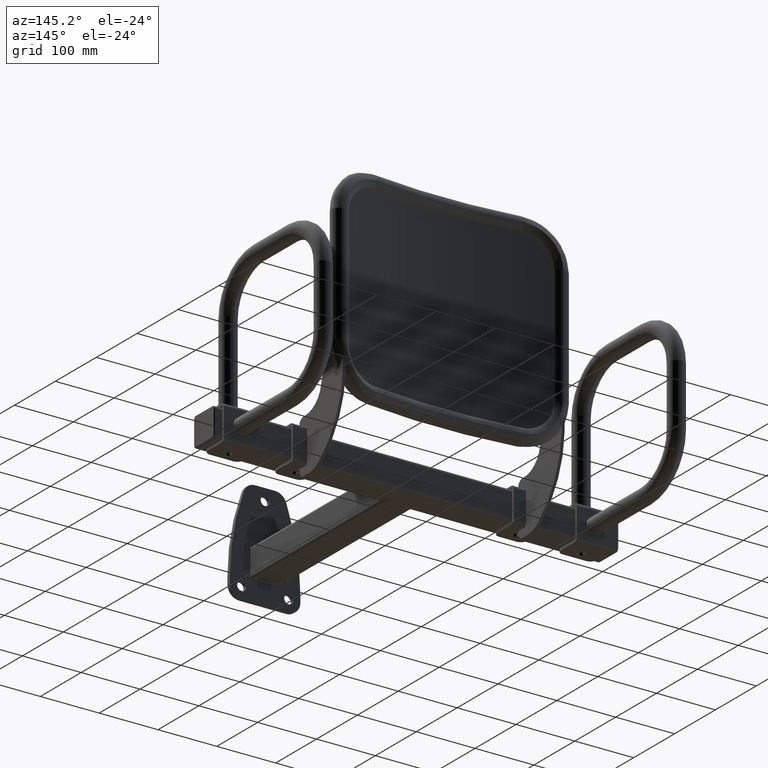
[diagram: clean part render]
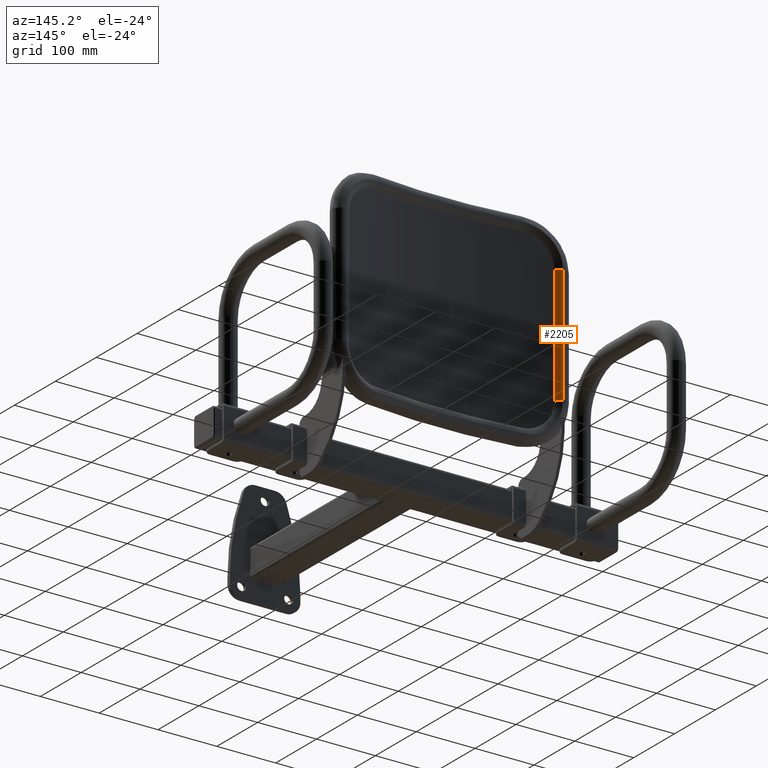
[diagram: same view with one face highlighted and labeled with its STEP entity id]
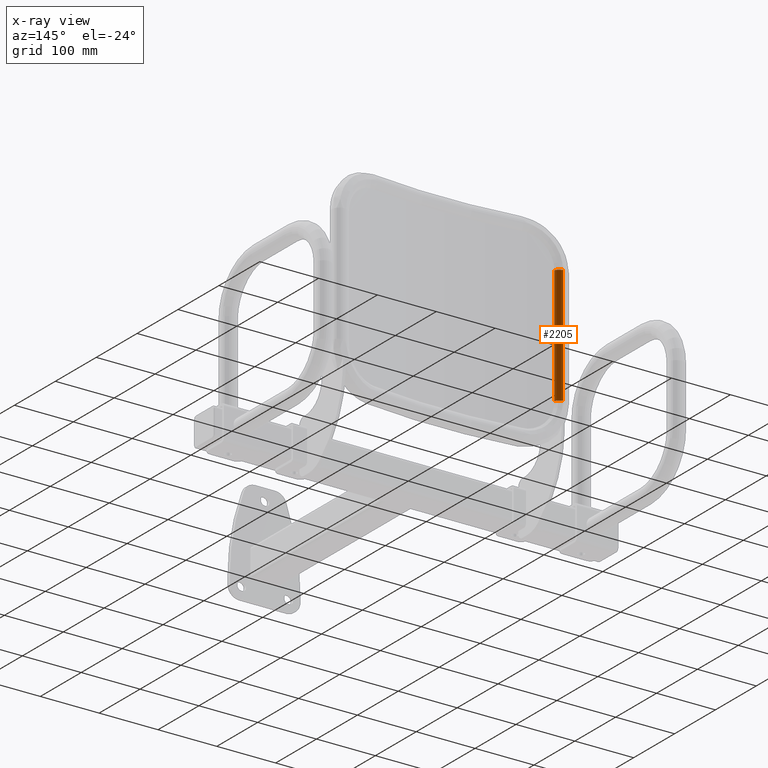
[diagram: x-ray of the same camera — body ghosted, the highlighted face saturated]
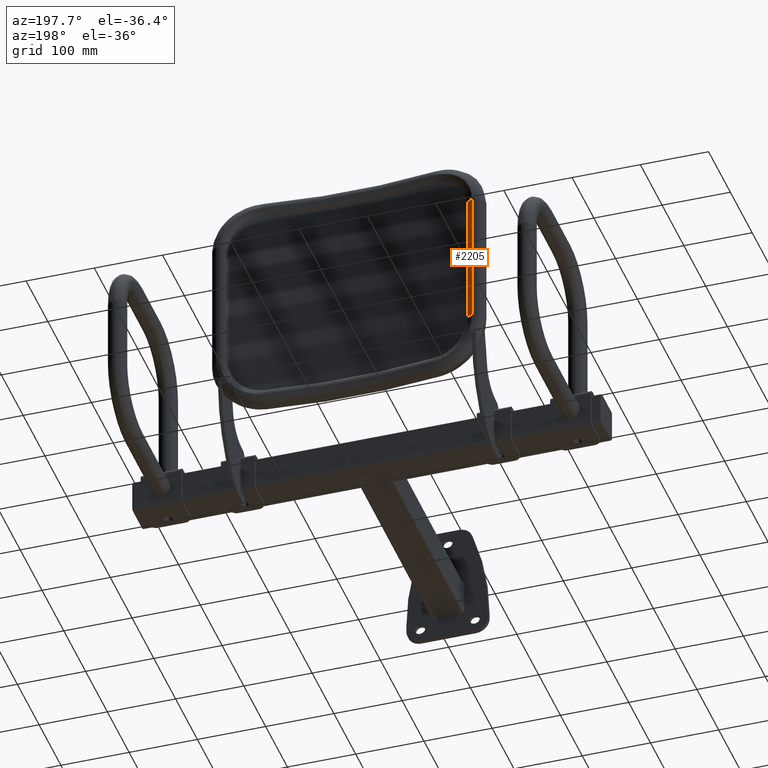
[diagram: same view with one face highlighted and labeled with its STEP entity id]
A machine part, auxiliary view. The second image highlights one B-rep face of the part: STEP entity #2205.
The next image is the same camera in x-ray: the body ghosted, the highlighted face saturated — about 0% of this face is hidden behind the body in this view.
A second angle (auxiliary view) of the same face is appended — the face is thin or edge-on in the first view.
In plain terms, the highlighted cylindrical surface (edge-blend (fillet) strip) has radius 13.45 mm, axis along (-0, -0, -1).
Its self-contained STEP definition (entity closure, byte-faithful):
#172 = ORIENTED_EDGE ( 'NONE', *, *, #5932, .F. ) ;
#1029 = ORIENTED_EDGE ( 'NONE', *, *, #5933, .F. ) ;
#1033 = ORIENTED_EDGE ( 'NONE', *, *, #5934, .F. ) ;
#1589 = CARTESIAN_POINT ( 'NONE',  ( -174.6780423094277000, 2.938127989229081900, -100.0000000000000000 ) ) ;
#1597 = CARTESIAN_POINT ( 'NONE',  ( -184.1415800637210800, 10.37827358454560800, 100.0000000000000000 ) ) ;
#1643 = CARTESIAN_POINT ( 'NONE',  ( -174.6780423094293200, 2.938127989232692400, 100.0000000000000000 ) ) ;
#1646 = CARTESIAN_POINT ( 'NONE',  ( -184.1415800637211100, 10.37827358454567100, -100.0000000000000000 ) ) ;
#2205 = ADVANCED_FACE ( 'NONE', ( #2727 ), #2728, .T. ) ;
#2513 = LINE ( 'NONE', #8030, #2530 ) ;
#2529 = LINE ( 'NONE', #8064, #2533 ) ;
#2530 = VECTOR ( 'NONE', #8063, 1000.000000000000000 ) ;
#2532 = CIRCLE ( 'NONE', #9330, 13.44999999999999000 ) ;
#2533 = VECTOR ( 'NONE', #8065, 1000.000000000000000 ) ;
#2727 = FACE_OUTER_BOUND ( 'NONE', #7414, .T. ) ;
#2728 = CYLINDRICAL_SURFACE ( 'NONE', #4721, 13.44999999999999000 ) ;
#3277 = CARTESIAN_POINT ( 'NONE',  ( -186.8437831643234100, -2.797484397562849200, -100.0000000000000000 ) ) ;
#3279 = DIRECTION ( 'NONE',  ( -0.0000000000000000000, 0.0000000000000000000, 1.000000000000000000 ) ) ;
#3281 = DIRECTION ( 'NONE',  ( 1.000000000000000000, 0.0000000000000000000, 0.0000000000000000000 ) ) ;
#3669 = EDGE_CURVE ( 'NONE', #9440, #9500, #5726, .T. ) ;
#4721 = AXIS2_PLACEMENT_3D ( 'NONE', #9724, #9725, #9623 ) ;
#5043 = ORIENTED_EDGE ( 'NONE', *, *, #3669, .T. ) ;
#5726 = CIRCLE ( 'NONE', #10185, 13.44999999999999000 ) ;
#5932 = EDGE_CURVE ( 'NONE', #9440, #9497, #2513, .T. ) ;
#5933 = EDGE_CURVE ( 'NONE', #9451, #9500, #2529, .T. ) ;
#5934 = EDGE_CURVE ( 'NONE', #9497, #9451, #2532, .T. ) ;
#7414 = EDGE_LOOP ( 'NONE', ( #172, #5043, #1029, #1033 ) ) ;
#8030 = CARTESIAN_POINT ( 'NONE',  ( -174.6780423094276400, 2.938127989229100100, 0.0000000000000000000 ) ) ;
#8063 = DIRECTION ( 'NONE',  ( 0.0000000000000000000, 0.0000000000000000000, 1.000000000000000000 ) ) ;
#8064 = CARTESIAN_POINT ( 'NONE',  ( -184.1415800637211400, 10.37827358454546100, 175.0000000000000000 ) ) ;
#8065 = DIRECTION ( 'NONE',  ( -0.0000000000000000000, -0.0000000000000000000, -1.000000000000000000 ) ) ;
#8068 = CARTESIAN_POINT ( 'NONE',  ( -186.8437831643233800, -2.797484397562772300, 100.0000000000000000 ) ) ;
#8069 = DIRECTION ( 'NONE',  ( -0.0000000000000000000, 0.0000000000000000000, 1.000000000000000000 ) ) ;
#8070 = DIRECTION ( 'NONE',  ( 1.000000000000000000, 0.0000000000000000000, 0.0000000000000000000 ) ) ;
#9330 = AXIS2_PLACEMENT_3D ( 'NONE', #8068, #8069, #8070 ) ;
#9440 = VERTEX_POINT ( 'NONE', #1589 ) ;
#9451 = VERTEX_POINT ( 'NONE', #1597 ) ;
#9497 = VERTEX_POINT ( 'NONE', #1643 ) ;
#9500 = VERTEX_POINT ( 'NONE', #1646 ) ;
#9623 = DIRECTION ( 'NONE',  ( -1.000000000000000000, 0.0000000000000000000, 0.0000000000000000000 ) ) ;
#9724 = CARTESIAN_POINT ( 'NONE',  ( -186.8437831643233800, -2.797484397562777200, 175.0000000000000000 ) ) ;
#9725 = DIRECTION ( 'NONE',  ( -0.0000000000000000000, -0.0000000000000000000, -1.000000000000000000 ) ) ;
#10185 = AXIS2_PLACEMENT_3D ( 'NONE', #3277, #3279, #3281 ) ;